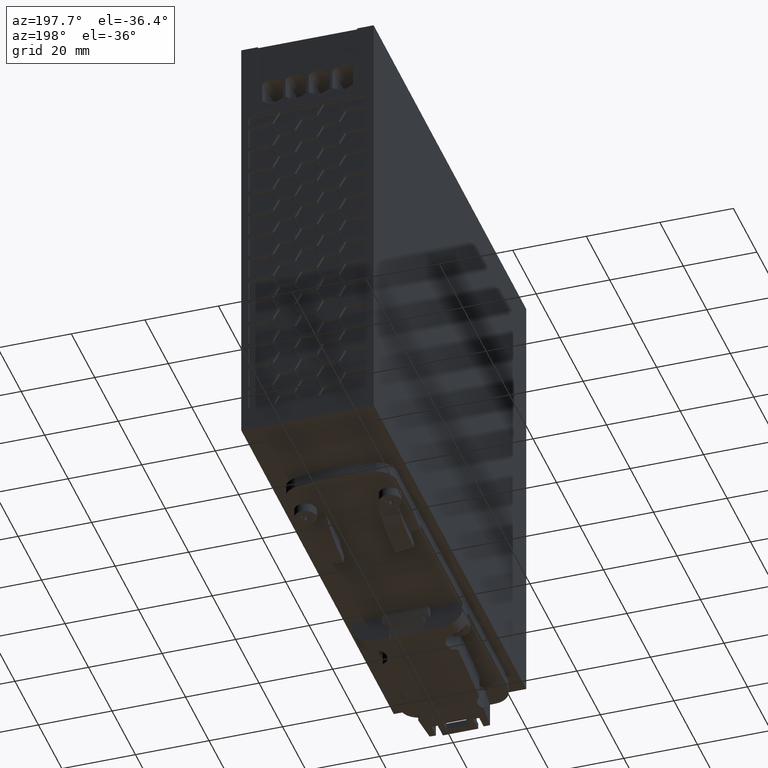
[diagram: clean part render]
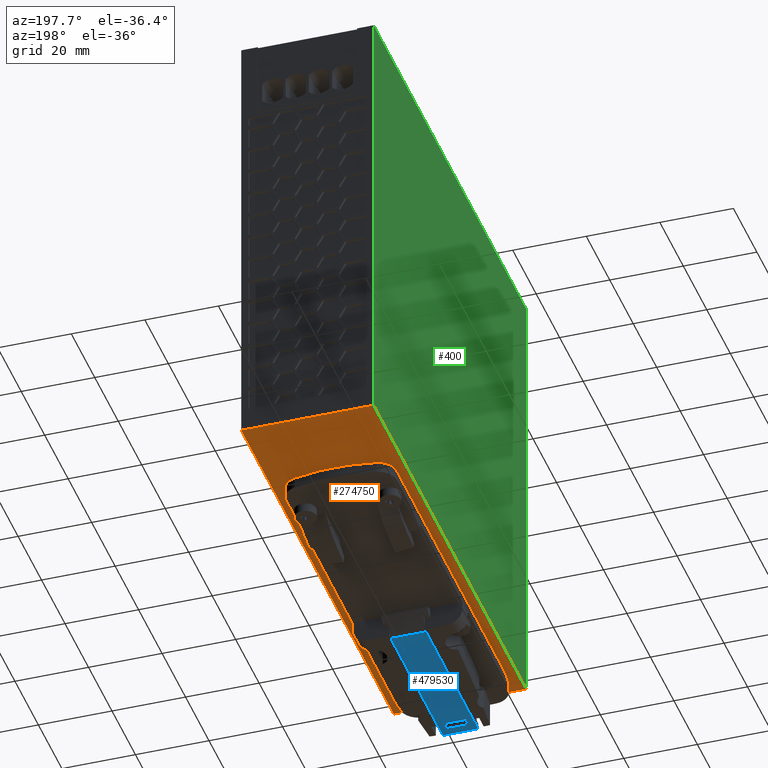
[diagram: same view with three faces highlighted in distinct colors, each labeled with its STEP entity id]
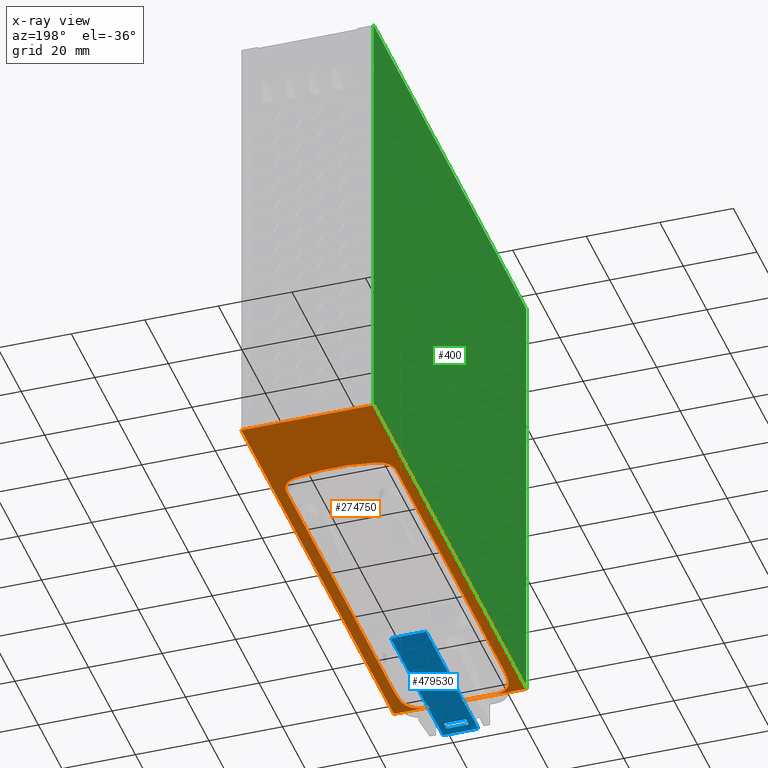
[diagram: x-ray of the same camera — body ghosted, the three highlighted faces saturated]
A machine part, auxiliary view with three faces highlighted in distinct colors.
The next image is the same camera in x-ray (body ghosted, the three faces saturated) — at least one of them is partly hidden behind the body in this view.
Their STEP definitions:

[orange] entity #274750 — the highlighted planar face has unit normal (-0, -0, 1).
#200=CARTESIAN_POINT('',(0.,0.,9.59999999999972));
#210=VERTEX_POINT('',#200);
#240=CARTESIAN_POINT('',(0.,0.799999999999955,9.59999999999972));
#250=DIRECTION('',(0.,1.,0.));
#260=VECTOR('',#250,1.);
#270=LINE('',#240,#260);
#280=CARTESIAN_POINT('',(0.,130.,9.59999999999972));
#290=VERTEX_POINT('',#280);
#300=EDGE_CURVE('',#210,#290,#270,.T.);
#20520=CARTESIAN_POINT('',(36.,130.,9.59999999999972));
#20530=VERTEX_POINT('',#20520);
#20560=CARTESIAN_POINT('',(36.,65.,9.59999999999972));
#20570=DIRECTION('',(0.,1.,0.));
#20580=VECTOR('',#20570,1.);
#20590=LINE('',#20560,#20580);
#20600=CARTESIAN_POINT('',(36.,0.,9.59999999999972));
#20610=VERTEX_POINT('',#20600);
#20620=EDGE_CURVE('',#20610,#20530,#20590,.T.);
#273650=CARTESIAN_POINT('',(0.,0.,9.59999999999972));
#273660=DIRECTION('',(-0.,0.,1.));
#273670=DIRECTION('',(0.,-1.,0.));
#273680=AXIS2_PLACEMENT_3D('',#273650,#273660,#273670);
#273690=PLANE('',#273680);
#273700=CARTESIAN_POINT('',(8.36080154088798,5.1985886361894,
9.59999999999972));
#273710=DIRECTION('',(9.95682444457783E-60,-3.26265223399926E-55,-1.));
#273720=DIRECTION('',(-1.,1.38913403349705E-19,-9.95682444457787E-60));
#273730=AXIS2_PLACEMENT_3D('',#273700,#273710,#273720);
#273740=CIRCLE('',#273730,4.99999999999992);
#273750=CARTESIAN_POINT('',(8.36087027498926,0.198588636661881,
9.59999999999972));
#273760=VERTEX_POINT('',#273750);
#273770=CARTESIAN_POINT('',(3.41209476745906,4.48423489285386,
9.59999999999972));
#273780=VERTEX_POINT('',#273770);
#273790=EDGE_CURVE('',#273760,#273780,#273740,.T.);
#273800=ORIENTED_EDGE('',*,*,#273790,.F.);
#273810=CARTESIAN_POINT('',(43.0017489548897,10.1990648395388,
9.59999999999972));
#273820=DIRECTION('',(9.95682444457783E-60,-3.26265223399926E-55,-1.));
#273830=DIRECTION('',(-1.,1.38913403349705E-19,-9.95682444457787E-60));
#273840=AXIS2_PLACEMENT_3D('',#273810,#273820,#273830);
#273850=CIRCLE('',#273840,39.9999999999984);
#273860=CARTESIAN_POINT('',(3.00174895867081,10.1985149667294,
9.59999999999972));
#273870=VERTEX_POINT('',#273860);
#273880=EDGE_CURVE('',#273780,#273870,#273850,.T.);
#273890=ORIENTED_EDGE('',*,*,#273880,.F.);
#273900=CARTESIAN_POINT('',(3.0009956125073,65.,9.59999999999972));
#273910=DIRECTION('',(1.37468202359206E-5,-0.999999999905512,0.));
#273920=VECTOR('',#273910,1.);
#273930=LINE('',#273900,#273920);
#273940=CARTESIAN_POINT('',(3.00049971882964,101.073336895104,
9.59999999999972));
#273950=VERTEX_POINT('',#273940);
#273960=EDGE_CURVE('',#273950,#273870,#273930,.T.);
#273970=ORIENTED_EDGE('',*,*,#273960,.T.);
#273980=CARTESIAN_POINT('',(8.00049971835728,101.073405629205,
9.59999999999972));
#273990=DIRECTION('',(9.95682444457783E-60,-3.26265223399926E-55,-1.));
#274000=DIRECTION('',(-1.,1.38913403349705E-19,-9.95682444457787E-60));
#274010=AXIS2_PLACEMENT_3D('',#273980,#273990,#274000);
#274020=CIRCLE('',#274010,5.00000000000008);
#274030=CARTESIAN_POINT('',(6.88932159187441,105.948370569717,
9.59999999999972));
#274040=VERTEX_POINT('',#274030);
#274050=EDGE_CURVE('',#273950,#274040,#274020,.T.);
#274060=ORIENTED_EDGE('',*,*,#274050,.F.);
#274070=CARTESIAN_POINT('',(18.0011028567024,57.1987211645928,
9.59999999999972));
#274080=DIRECTION('',(9.95682444457783E-60,-3.26265223399926E-55,-1.));
#274090=DIRECTION('',(-1.,1.38913403349705E-19,-9.95682444457787E-60));
#274100=AXIS2_PLACEMENT_3D('',#274070,#274080,#274090);
#274110=CIRCLE('',#274100,49.9999999999993);
#274120=CARTESIAN_POINT('',(29.1115438119969,105.948676054611,
9.59999999999972));
#274130=VERTEX_POINT('',#274120);
#274140=EDGE_CURVE('',#274040,#274130,#274110,.T.);
#274150=ORIENTED_EDGE('',*,*,#274140,.F.);
#274160=CARTESIAN_POINT('',(28.0004997164675,101.073680565609,
9.59999999999972));
#274170=DIRECTION('',(9.95682444457783E-60,-3.26265223399926E-55,-1.));
#274180=DIRECTION('',(-1.,1.38913403349705E-19,-9.95682444457787E-60));
#274190=AXIS2_PLACEMENT_3D('',#274160,#274170,#274180);
#274200=CIRCLE('',#274190,4.99999999999995);
#274210=CARTESIAN_POINT('',(33.000499715995,101.073749299711,
9.59999999999972));
#274220=VERTEX_POINT('',#274210);
#274230=EDGE_CURVE('',#274130,#274220,#274200,.T.);
#274240=ORIENTED_EDGE('',*,*,#274230,.F.);
#274250=CARTESIAN_POINT('',(33.0009956153419,65.,9.59999999999972));
#274260=DIRECTION('',(-1.37468202358229E-5,0.999999999905513,0.));
#274270=VECTOR('',#274260,1.);
#274280=LINE('',#274250,#274270);
#274290=CARTESIAN_POINT('',(33.0017489558362,10.1989273713365,
9.59999999999972));
#274300=VERTEX_POINT('',#274290);
#274310=EDGE_CURVE('',#274300,#274220,#274280,.T.);
#274320=ORIENTED_EDGE('',*,*,#274310,.T.);
#274330=CARTESIAN_POINT('',(-6.99825104038126,10.1983774985268,
9.59999999999972));
#274340=DIRECTION('',(9.95682444457783E-60,-3.26265223399926E-55,-1.));
#274350=DIRECTION('',(-1.,1.38913403349705E-19,-9.95682444457787E-60));
#274360=AXIS2_PLACEMENT_3D('',#274330,#274340,#274350);
#274370=CIRCLE('',#274360,39.9999999999969);
#274380=CARTESIAN_POINT('',(32.5915602535649,4.48463601772052,
9.59999999999972));
#274390=VERTEX_POINT('',#274380);
#274400=EDGE_CURVE('',#274300,#274390,#274370,.T.);
#274410=ORIENTED_EDGE('',*,*,#274400,.F.);
#274420=CARTESIAN_POINT('',(27.6428338418213,5.19885370282137,
9.59999999999972));
#274430=DIRECTION('',(9.95682444457783E-60,-3.26265223399926E-55,-1.));
#274440=DIRECTION('',(-1.,1.38913403349705E-19,-9.95682444457787E-60));
#274450=AXIS2_PLACEMENT_3D('',#274420,#274430,#274440);
#274460=CIRCLE('',#274450,4.99999999999991);
#274470=CARTESIAN_POINT('',(27.6429025759224,0.198853703293892,
9.59999999999972));
#274480=VERTEX_POINT('',#274470);
#274490=EDGE_CURVE('',#274390,#274480,#274460,.T.);
#274500=ORIENTED_EDGE('',*,*,#274490,.F.);
#274510=CARTESIAN_POINT('',(0.,0.198473701281159,9.59999999999972));
#274520=DIRECTION('',(0.999999999905513,1.37468202386569E-5,0.));
#274530=VECTOR('',#274520,1.);
#274540=LINE('',#274510,#274530);
#274550=EDGE_CURVE('',#273760,#274480,#274540,.T.);
#274560=ORIENTED_EDGE('',*,*,#274550,.T.);
#274570=EDGE_LOOP('',(#274560,#274500,#274410,#274320,#274240,#274150,
#274060,#273970,#273890,#273800));
#274580=FACE_BOUND('',#274570,.T.);
#274590=ORIENTED_EDGE('',*,*,#20620,.F.);
#274600=CARTESIAN_POINT('',(0.,130.,9.59999999999972));
#274610=DIRECTION('',(1.,0.,0.));
#274620=VECTOR('',#274610,1.);
#274630=LINE('',#274600,#274620);
#274640=EDGE_CURVE('',#290,#20530,#274630,.T.);
#274650=ORIENTED_EDGE('',*,*,#274640,.T.);
#274660=ORIENTED_EDGE('',*,*,#300,.T.);
#274670=CARTESIAN_POINT('',(0.,0.,9.59999999999972));
#274680=DIRECTION('',(-1.,0.,0.));
#274690=VECTOR('',#274680,1.);
#274700=LINE('',#274670,#274690);
#274710=EDGE_CURVE('',#20610,#210,#274700,.T.);
#274720=ORIENTED_EDGE('',*,*,#274710,.T.);
#274730=EDGE_LOOP('',(#274720,#274660,#274650,#274590));
#274740=FACE_OUTER_BOUND('',#274730,.T.);
#274750=ADVANCED_FACE('',(#274580,#274740),#273690,.F.);

[blue] entity #479530 — the highlighted planar face has unit normal (0, 0, -1).
#465190=CARTESIAN_POINT('',(13.2012850025241,43.9486551811066,
0.0999999999997385));
#465200=VERTEX_POINT('',#465190);
#465230=CARTESIAN_POINT('',(0.00178708709996158,43.9484737299816,
0.0999999999997385));
#465240=DIRECTION('',(0.999999999905512,1.37468202354691E-5,
5.47171506847304E-60));
#465250=VECTOR('',#465240,1.);
#465260=LINE('',#465230,#465250);
#465270=CARTESIAN_POINT('',(22.801285001617,43.9487871505809,
0.0999999999997385));
#465280=VERTEX_POINT('',#465270);
#465290=EDGE_CURVE('',#465200,#465280,#465260,.T.);
#478000=CARTESIAN_POINT('',(22.8001130685189,129.2,0.0999999999997385));
#478010=DIRECTION('',(-1.37468202358296E-5,0.999999999905512,
-3.26265223505973E-55));
#478020=VECTOR('',#478010,1.);
#478030=LINE('',#478000,#478020);
#478040=CARTESIAN_POINT('',(22.8018328124034,4.09878715434665,
0.0999999999997385));
#478050=VERTEX_POINT('',#478040);
#478060=EDGE_CURVE('',#478050,#465280,#478030,.T.);
#478670=CARTESIAN_POINT('',(13.2018328133105,4.09865518487238,
0.0999999999997385));
#478680=VERTEX_POINT('',#478670);
#478710=CARTESIAN_POINT('',(13.2001130676118,129.2,0.0999999999997385));
#478720=DIRECTION('',(1.37468202359536E-5,-0.999999999905512,
3.26265223505973E-55));
#478730=VECTOR('',#478720,1.);
#478740=LINE('',#478710,#478730);
#478750=EDGE_CURVE('',#465200,#478680,#478740,.T.);
#478870=CARTESIAN_POINT('',(23.0419143993832,-1.56135189382991,
0.0999999999997385));
#478880=DIRECTION('',(9.95682444457778E-60,-3.26265223399926E-55,-1.));
#478890=DIRECTION('',(-1.,1.38913403349705E-19,-9.95682444457783E-60));
#478900=AXIS2_PLACEMENT_3D('',#478870,#478880,#478890);
#478910=PLANE('',#478900);
#478920=CARTESIAN_POINT('',(21.0001130683481,129.2,0.0999999999997385));
#478930=DIRECTION('',(-1.37468202418831E-5,0.999999999905513,
-3.26265223505973E-55));
#478940=VECTOR('',#478930,1.);
#478950=LINE('',#478920,#478940);
#478960=CARTESIAN_POINT('',(21.0018609935549,2.04876241026375,
0.0999999999997385));
#478970=VERTEX_POINT('',#478960);
#478980=CARTESIAN_POINT('',(21.0018293758684,4.34876241004642,
0.0999999999997385));
#478990=VERTEX_POINT('',#478980);
#479000=EDGE_CURVE('',#478970,#478990,#478950,.T.);
#479010=ORIENTED_EDGE('',*,*,#479000,.T.);
#479020=CARTESIAN_POINT('',(0.00178708709996157,2.04847372602273,
0.0999999999997385));
#479030=DIRECTION('',(0.999999999905512,1.3746820238858E-5,
5.47171506736735E-60));
#479040=VECTOR('',#479030,1.);
#479050=LINE('',#479020,#479040);
#479060=CARTESIAN_POINT('',(15.0018609941219,2.04867992934234,
0.0999999999997385));
#479070=VERTEX_POINT('',#479060);
#479080=EDGE_CURVE('',#479070,#478970,#479050,.T.);
#479090=ORIENTED_EDGE('',*,*,#479080,.T.);
#479100=CARTESIAN_POINT('',(15.0001130677812,129.2,0.0999999999997385));
#479110=DIRECTION('',(1.37468202418831E-5,-0.999999999905513,
3.26265223505973E-55));
#479120=VECTOR('',#479110,1.);
#479130=LINE('',#479100,#479120);
#479140=CARTESIAN_POINT('',(15.0018293764353,4.34867992912501,
0.0999999999997385));
#479150=VERTEX_POINT('',#479140);
#479160=EDGE_CURVE('',#479150,#479070,#479130,.T.);
#479170=ORIENTED_EDGE('',*,*,#479160,.T.);
#479180=CARTESIAN_POINT('',(0.00178708709996157,4.34847372624006,
0.0999999999997385));
#479190=DIRECTION('',(-0.999999999905512,-1.37468202387645E-5,
-5.47171506739787E-60));
#479200=VECTOR('',#479190,1.);
#479210=LINE('',#479180,#479200);
#479220=EDGE_CURVE('',#478990,#479150,#479210,.T.);
#479230=ORIENTED_EDGE('',*,*,#479220,.T.);
#479240=EDGE_LOOP('',(#479230,#479170,#479090,#479010));
#479250=FACE_BOUND('',#479240,.T.);
#479260=ORIENTED_EDGE('',*,*,#478750,.F.);
#479270=CARTESIAN_POINT('',(13.2001130676118,129.2,0.0999999999997385));
#479280=DIRECTION('',(1.37468202360801E-5,-0.999999999905513,
3.26265223505973E-55));
#479290=VECTOR('',#479280,1.);
#479300=LINE('',#479270,#479290);
#479310=CARTESIAN_POINT('',(13.2018953613425,-0.451344814697876,
0.0999999999997385));
#479320=VERTEX_POINT('',#479310);
#479330=EDGE_CURVE('',#478680,#479320,#479300,.T.);
#479340=ORIENTED_EDGE('',*,*,#479330,.F.);
#479350=CARTESIAN_POINT('',(0.00178708709996157,-0.451526274213563,
0.0999999999997385));
#479360=DIRECTION('',(-0.999999999905513,-1.37468202420775E-5,
-5.47171506631695E-60));
#479370=VECTOR('',#479360,1.);
#479380=LINE('',#479350,#479370);
#479390=CARTESIAN_POINT('',(22.8018953604355,-0.451212845223608,
0.0999999999997385));
#479400=VERTEX_POINT('',#479390);
#479410=EDGE_CURVE('',#479400,#479320,#479380,.T.);
#479420=ORIENTED_EDGE('',*,*,#479410,.T.);
#479430=CARTESIAN_POINT('',(22.8001130685191,129.2,0.0999999999997385));
#479440=DIRECTION('',(1.37468202349647E-5,-0.999999999905512,
3.26265223505973E-55));
#479450=VECTOR('',#479440,1.);
#479460=LINE('',#479430,#479450);
#479470=EDGE_CURVE('',#478050,#479400,#479460,.T.);
#479480=ORIENTED_EDGE('',*,*,#479470,.T.);
#479490=ORIENTED_EDGE('',*,*,#478060,.F.);
#479500=ORIENTED_EDGE('',*,*,#465290,.T.);
#479510=EDGE_LOOP('',(#479500,#479490,#479480,#479420,#479340,#479260));
#479520=FACE_OUTER_BOUND('',#479510,.T.);
#479530=ADVANCED_FACE('',(#479250,#479520),#478910,.T.);

[green] entity #400 — the highlighted planar face has unit normal (-1, 0, 0).
#10=CARTESIAN_POINT('',(0.,65.,131.2));
#20=DIRECTION('',(-1.,0.,0.));
#30=DIRECTION('',(0.,-1.,0.));
#40=AXIS2_PLACEMENT_3D('',#10,#20,#30);
#50=PLANE('',#40);
#60=CARTESIAN_POINT('',(0.,65.,131.85));
#70=DIRECTION('',(0.,1.,0.));
#80=VECTOR('',#70,1.);
#90=LINE('',#60,#80);
#100=CARTESIAN_POINT('',(0.,0.,131.85));
#110=VERTEX_POINT('',#100);
#120=CARTESIAN_POINT('',(0.,130.,131.85));
#130=VERTEX_POINT('',#120);
#140=EDGE_CURVE('',#110,#130,#90,.T.);
#150=ORIENTED_EDGE('',*,*,#140,.T.);
#160=CARTESIAN_POINT('',(0.,0.,131.2));
#170=DIRECTION('',(0.,0.,-1.));
#180=VECTOR('',#170,1.);
#190=LINE('',#160,#180);
#200=CARTESIAN_POINT('',(0.,0.,9.59999999999972));
#210=VERTEX_POINT('',#200);
#220=EDGE_CURVE('',#110,#210,#190,.T.);
#230=ORIENTED_EDGE('',*,*,#220,.F.);
#240=CARTESIAN_POINT('',(0.,0.799999999999955,9.59999999999972));
#250=DIRECTION('',(0.,1.,0.));
#260=VECTOR('',#250,1.);
#270=LINE('',#240,#260);
#280=CARTESIAN_POINT('',(0.,130.,9.59999999999972));
#290=VERTEX_POINT('',#280);
#300=EDGE_CURVE('',#210,#290,#270,.T.);
#310=ORIENTED_EDGE('',*,*,#300,.F.);
#320=CARTESIAN_POINT('',(0.,130.,131.2));
#330=DIRECTION('',(0.,0.,1.));
#340=VECTOR('',#330,1.);
#350=LINE('',#320,#340);
#360=EDGE_CURVE('',#290,#130,#350,.T.);
#370=ORIENTED_EDGE('',*,*,#360,.F.);
#380=EDGE_LOOP('',(#370,#310,#230,#150));
#390=FACE_OUTER_BOUND('',#380,.T.);
#400=ADVANCED_FACE('',(#390),#50,.T.);